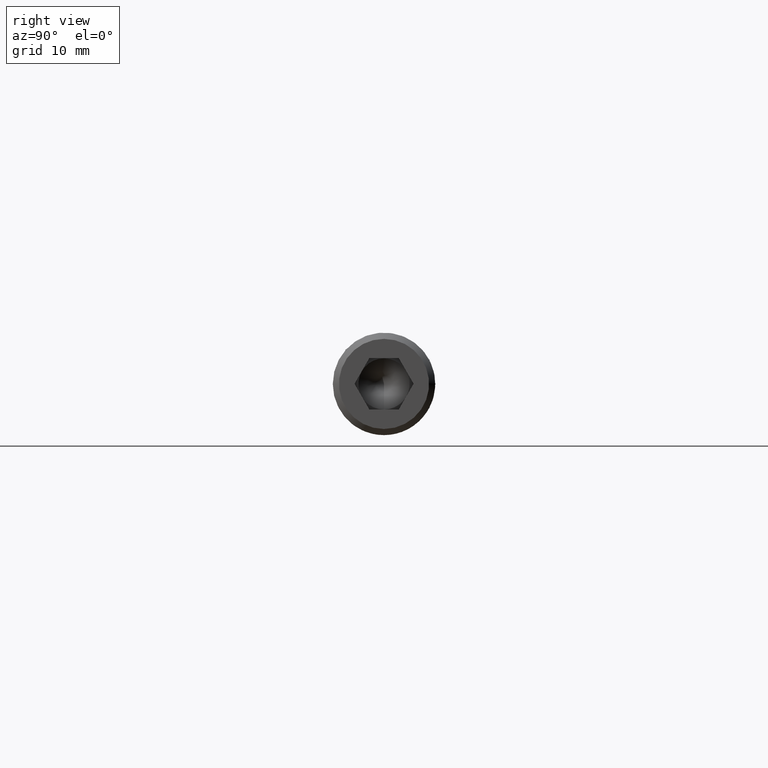
[diagram: clean part render]
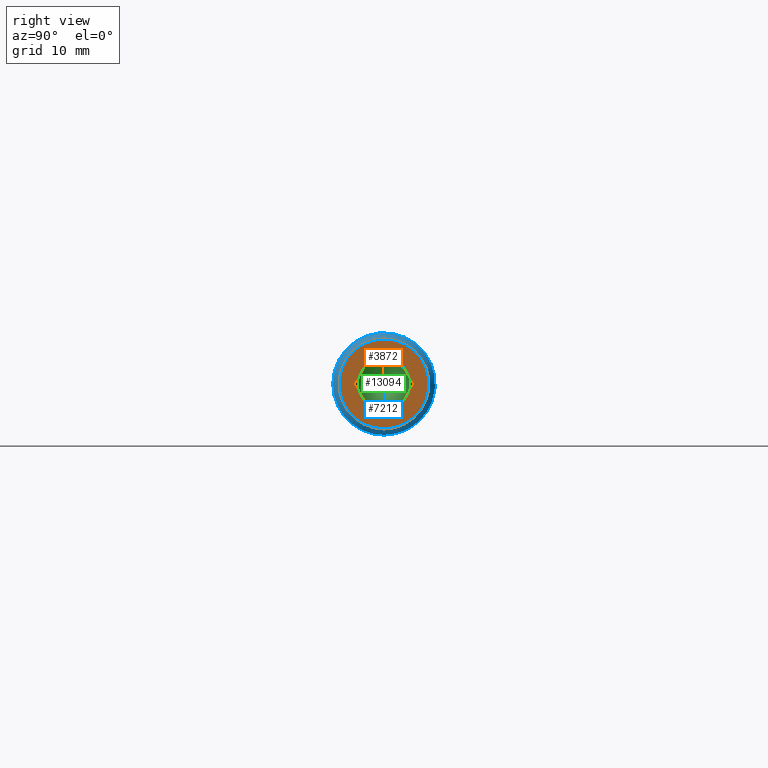
[diagram: same view with three faces highlighted in distinct colors, each labeled with its STEP entity id]
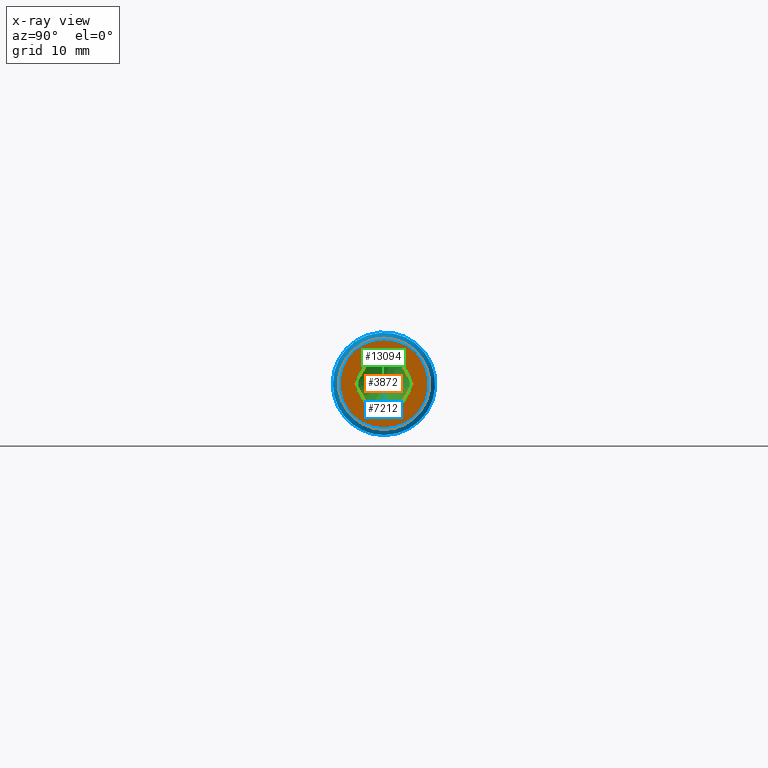
[diagram: x-ray of the same camera — body ghosted, the three highlighted faces saturated]
A machine part, right view with three faces highlighted in distinct colors.
The next image is the same camera in x-ray (body ghosted, the three faces saturated) — at least one of them is partly hidden behind the body in this view.
Their STEP definitions:

[orange] entity #3872 — the highlighted planar face has unit normal (1, 0, 0).
#395 = EDGE_LOOP ( 'NONE', ( #12107, #11286, #5623, #5883, #7409, #6543 ) ) ;
#838 = EDGE_CURVE ( 'NONE', #14747, #13923, #16644, .T. ) ;
#1577 = CARTESIAN_POINT ( 'NONE',  ( 70.00000000000000000, -2.886751345948133500, -4.766870681724039000E-018 ) ) ;
#1619 = EDGE_CURVE ( 'NONE', #10356, #9795, #4208, .T. ) ;
#1963 = ORIENTED_EDGE ( 'NONE', *, *, #10700, .T. ) ;
#2658 = CARTESIAN_POINT ( 'NONE',  ( 70.00000000000000000, -2.886751345948133500, -2.168404344971008900E-016 ) ) ;
#2667 = EDGE_LOOP ( 'NONE', ( #1963 ) ) ;
#3147 = LINE ( 'NONE', #5630, #14275 ) ;
#3193 = PLANE ( 'NONE',  #16053 ) ;
#3872 = ADVANCED_FACE ( 'NONE', ( #5187, #14295 ), #3193, .T. ) ;
#4208 = LINE ( 'NONE', #4544, #14334 ) ;
#4544 = CARTESIAN_POINT ( 'NONE',  ( 70.00000000000000000, -1.443375672974068500, 2.500000000000000400 ) ) ;
#4558 = LINE ( 'NONE', #8819, #16759 ) ;
#4677 = CARTESIAN_POINT ( 'NONE',  ( 70.00000000000000000, 0.0000000000000000000, 0.0000000000000000000 ) ) ;
#4721 = CARTESIAN_POINT ( 'NONE',  ( 70.00000000000000000, -1.443375672974070800, -2.499999999999999100 ) ) ;
#5187 = FACE_BOUND ( 'NONE', #395, .T. ) ;
#5623 = ORIENTED_EDGE ( 'NONE', *, *, #15873, .F. ) ;
#5630 = CARTESIAN_POINT ( 'NONE',  ( 70.00000000000000000, 1.443375672974060800, 2.500000000000000400 ) ) ;
#5647 = VECTOR ( 'NONE', #11597, 1000.000000000000000 ) ;
#5837 = DIRECTION ( 'NONE',  ( 1.000000000000000000, 0.0000000000000000000, 0.0000000000000000000 ) ) ;
#5883 = ORIENTED_EDGE ( 'NONE', *, *, #838, .F. ) ;
#5902 = AXIS2_PLACEMENT_3D ( 'NONE', #16089, #10814, #12087 ) ;
#6267 = LINE ( 'NONE', #1577, #16836 ) ;
#6543 = ORIENTED_EDGE ( 'NONE', *, *, #11757, .F. ) ;
#6946 = DIRECTION ( 'NONE',  ( 0.0000000000000000000, 0.4999999999999997200, -0.8660254037844388200 ) ) ;
#7097 = DIRECTION ( 'NONE',  ( 0.0000000000000000000, -0.5000000000000001100, -0.8660254037844384900 ) ) ;
#7409 = ORIENTED_EDGE ( 'NONE', *, *, #13074, .F. ) ;
#7703 = LINE ( 'NONE', #8896, #5647 ) ;
#8518 = CARTESIAN_POINT ( 'NONE',  ( 70.00000000000000000, 2.886751345948125100, -6.345340530042170500E-016 ) ) ;
#8611 = DIRECTION ( 'NONE',  ( 0.0000000000000000000, 0.0000000000000000000, -1.000000000000000000 ) ) ;
#8819 = CARTESIAN_POINT ( 'NONE',  ( 70.00000000000000000, 2.886751345948125100, -6.345340530042170500E-016 ) ) ;
#8896 = CARTESIAN_POINT ( 'NONE',  ( 70.00000000000000000, -1.443375672974070800, -2.499999999999999100 ) ) ;
#9128 = CARTESIAN_POINT ( 'NONE',  ( 70.00000000000000000, 1.443375672974060800, 2.500000000000000400 ) ) ;
#9795 = VERTEX_POINT ( 'NONE', #2658 ) ;
#10356 = VERTEX_POINT ( 'NONE', #15063 ) ;
#10700 = EDGE_CURVE ( 'NONE', #17143, #17143, #14809, .T. ) ;
#10814 = DIRECTION ( 'NONE',  ( 1.000000000000000000, 0.0000000000000000000, 0.0000000000000000000 ) ) ;
#11286 = ORIENTED_EDGE ( 'NONE', *, *, #15314, .F. ) ;
#11597 = DIRECTION ( 'NONE',  ( 0.0000000000000000000, 1.000000000000000000, -1.502314598737157300E-016 ) ) ;
#11757 = EDGE_CURVE ( 'NONE', #9795, #13629, #6267, .T. ) ;
#11954 = CARTESIAN_POINT ( 'NONE',  ( 70.00000000000000000, 1.443375672974062100, -2.499999999999999600 ) ) ;
#12087 = DIRECTION ( 'NONE',  ( 0.0000000000000000000, 0.0000000000000000000, -1.000000000000000000 ) ) ;
#12107 = ORIENTED_EDGE ( 'NONE', *, *, #1619, .F. ) ;
#13033 = CARTESIAN_POINT ( 'NONE',  ( 70.00000000000000000, 1.443375672974062100, -2.499999999999999600 ) ) ;
#13074 = EDGE_CURVE ( 'NONE', #13629, #14747, #7703, .T. ) ;
#13109 = VECTOR ( 'NONE', #13394, 1000.000000000000000 ) ;
#13159 = VERTEX_POINT ( 'NONE', #9128 ) ;
#13394 = DIRECTION ( 'NONE',  ( 0.0000000000000000000, 0.4999999999999997200, 0.8660254037844388200 ) ) ;
#13629 = VERTEX_POINT ( 'NONE', #4721 ) ;
#13923 = VERTEX_POINT ( 'NONE', #8518 ) ;
#14275 = VECTOR ( 'NONE', #14868, 1000.000000000000000 ) ;
#14295 = FACE_OUTER_BOUND ( 'NONE', #2667, .T. ) ;
#14334 = VECTOR ( 'NONE', #7097, 1000.000000000000200 ) ;
#14747 = VERTEX_POINT ( 'NONE', #13033 ) ;
#14809 = CIRCLE ( 'NONE', #5902, 4.399999999999996800 ) ;
#14868 = DIRECTION ( 'NONE',  ( 0.0000000000000000000, -1.000000000000000000, 0.0000000000000000000 ) ) ;
#15063 = CARTESIAN_POINT ( 'NONE',  ( 70.00000000000000000, -1.443375672974068500, 2.500000000000000400 ) ) ;
#15314 = EDGE_CURVE ( 'NONE', #13159, #10356, #3147, .T. ) ;
#15873 = EDGE_CURVE ( 'NONE', #13923, #13159, #4558, .T. ) ;
#15987 = CARTESIAN_POINT ( 'NONE',  ( 70.00000000000000000, 0.0000000000000000000, -4.399999999999996800 ) ) ;
#16053 = AXIS2_PLACEMENT_3D ( 'NONE', #4677, #5837, #8611 ) ;
#16089 = CARTESIAN_POINT ( 'NONE',  ( 70.00000000000000000, 0.0000000000000000000, 0.0000000000000000000 ) ) ;
#16644 = LINE ( 'NONE', #11954, #13109 ) ;
#16759 = VECTOR ( 'NONE', #16903, 1000.000000000000100 ) ;
#16836 = VECTOR ( 'NONE', #6946, 1000.000000000000000 ) ;
#16903 = DIRECTION ( 'NONE',  ( 0.0000000000000000000, -0.4999999999999997800, 0.8660254037844387100 ) ) ;
#17143 = VERTEX_POINT ( 'NONE', #15987 ) ;

[blue] entity #7212 — the highlighted conical surface has half-angle 45 deg.
#496 = EDGE_LOOP ( 'NONE', ( #12341 ) ) ;
#1043 = FACE_OUTER_BOUND ( 'NONE', #496, .T. ) ;
#3706 = VERTEX_POINT ( 'NONE', #8065 ) ;
#4223 = AXIS2_PLACEMENT_3D ( 'NONE', #15595, #14371, #6438 ) ;
#5902 = AXIS2_PLACEMENT_3D ( 'NONE', #16089, #10814, #12087 ) ;
#5999 = DIRECTION ( 'NONE',  ( -1.000000000000000000, 0.0000000000000000000, 0.0000000000000000000 ) ) ;
#6438 = DIRECTION ( 'NONE',  ( 0.0000000000000000000, 0.0000000000000000000, -1.000000000000000000 ) ) ;
#7212 = ADVANCED_FACE ( 'NONE', ( #1043, #14373 ), #9131, .T. ) ;
#7348 = DIRECTION ( 'NONE',  ( 0.0000000000000000000, 0.0000000000000000000, 1.000000000000000000 ) ) ;
#8065 = CARTESIAN_POINT ( 'NONE',  ( 69.40000000000000600, 0.0000000000000000000, -5.000000000000000000 ) ) ;
#9131 = CONICAL_SURFACE ( 'NONE', #9743, 4.399999999999996800, 0.7853981633974482800 ) ;
#9473 = EDGE_LOOP ( 'NONE', ( #14982 ) ) ;
#9743 = AXIS2_PLACEMENT_3D ( 'NONE', #12587, #5999, #7348 ) ;
#10120 = EDGE_CURVE ( 'NONE', #3706, #3706, #14934, .T. ) ;
#10700 = EDGE_CURVE ( 'NONE', #17143, #17143, #14809, .T. ) ;
#10814 = DIRECTION ( 'NONE',  ( 1.000000000000000000, 0.0000000000000000000, 0.0000000000000000000 ) ) ;
#12087 = DIRECTION ( 'NONE',  ( 0.0000000000000000000, 0.0000000000000000000, -1.000000000000000000 ) ) ;
#12341 = ORIENTED_EDGE ( 'NONE', *, *, #10120, .F. ) ;
#12587 = CARTESIAN_POINT ( 'NONE',  ( 70.00000000000000000, 0.0000000000000000000, 0.0000000000000000000 ) ) ;
#14371 = DIRECTION ( 'NONE',  ( -1.000000000000000000, 0.0000000000000000000, 0.0000000000000000000 ) ) ;
#14373 = FACE_BOUND ( 'NONE', #9473, .T. ) ;
#14809 = CIRCLE ( 'NONE', #5902, 4.399999999999996800 ) ;
#14934 = CIRCLE ( 'NONE', #4223, 5.000000000000000000 ) ;
#14982 = ORIENTED_EDGE ( 'NONE', *, *, #10700, .F. ) ;
#15595 = CARTESIAN_POINT ( 'NONE',  ( 69.40000000000000600, 0.0000000000000000000, 0.0000000000000000000 ) ) ;
#15987 = CARTESIAN_POINT ( 'NONE',  ( 70.00000000000000000, 0.0000000000000000000, -4.399999999999996800 ) ) ;
#16089 = CARTESIAN_POINT ( 'NONE',  ( 70.00000000000000000, 0.0000000000000000000, 0.0000000000000000000 ) ) ;
#17143 = VERTEX_POINT ( 'NONE', #15987 ) ;

[green] entity #13094 — the highlighted conical surface has half-angle 59 deg.
#19 = CIRCLE ( 'NONE', #12941, 2.499999999999997300 ) ;
#375 = DIRECTION ( 'NONE',  ( 0.0000000000000000000, 0.0000000000000000000, -1.000000000000000000 ) ) ;
#441 = CARTESIAN_POINT ( 'NONE',  ( 64.00000000000000000, -2.165063509461099500, -1.250000000000004900 ) ) ;
#598 = VERTEX_POINT ( 'NONE', #10590 ) ;
#623 = DIRECTION ( 'NONE',  ( 1.000000000000000000, 0.0000000000000000000, 0.0000000000000000000 ) ) ;
#788 = DIRECTION ( 'NONE',  ( 0.0000000000000000000, 0.0000000000000000000, -1.000000000000000000 ) ) ;
#935 = ORIENTED_EDGE ( 'NONE', *, *, #16229, .T. ) ;
#1407 = CARTESIAN_POINT ( 'NONE',  ( 64.00000000000000000, -2.165063509461095000, 1.249999999999995800 ) ) ;
#1661 = EDGE_CURVE ( 'NONE', #7528, #598, #7524, .T. ) ;
#1796 = EDGE_LOOP ( 'NONE', ( #3772, #17009, #935, #9366, #3487, #3219 ) ) ;
#1899 = CARTESIAN_POINT ( 'NONE',  ( 64.00000000000000000, -3.755786496842887700E-016, -2.500000000000000000 ) ) ;
#2258 = DIRECTION ( 'NONE',  ( 0.0000000000000000000, 0.0000000000000000000, -1.000000000000000000 ) ) ;
#3219 = ORIENTED_EDGE ( 'NONE', *, *, #8610, .T. ) ;
#3487 = ORIENTED_EDGE ( 'NONE', *, *, #7591, .T. ) ;
#3606 = DIRECTION ( 'NONE',  ( 0.0000000000000000000, 0.0000000000000000000, -1.000000000000000000 ) ) ;
#3655 = CARTESIAN_POINT ( 'NONE',  ( 64.00000000000000000, 0.0000000000000000000, -3.815231260201602100E-015 ) ) ;
#3772 = ORIENTED_EDGE ( 'NONE', *, *, #1661, .T. ) ;
#4853 = AXIS2_PLACEMENT_3D ( 'NONE', #12616, #16630, #8873 ) ;
#5117 = AXIS2_PLACEMENT_3D ( 'NONE', #3655, #15627, #3606 ) ;
#5322 = AXIS2_PLACEMENT_3D ( 'NONE', #9289, #13327, #5398 ) ;
#5398 = DIRECTION ( 'NONE',  ( 0.0000000000000000000, 0.0000000000000000000, -1.000000000000000000 ) ) ;
#7080 = CIRCLE ( 'NONE', #14951, 2.499999999999997300 ) ;
#7524 = CIRCLE ( 'NONE', #4853, 2.499999999999997300 ) ;
#7528 = VERTEX_POINT ( 'NONE', #1899 ) ;
#7591 = EDGE_CURVE ( 'NONE', #12992, #15331, #19, .T. ) ;
#8270 = CARTESIAN_POINT ( 'NONE',  ( 64.00000000000000000, 0.0000000000000000000, -3.815231260201602100E-015 ) ) ;
#8278 = CIRCLE ( 'NONE', #5117, 2.499999999999997300 ) ;
#8610 = EDGE_CURVE ( 'NONE', #15331, #7528, #7080, .T. ) ;
#8873 = DIRECTION ( 'NONE',  ( 0.0000000000000000000, 0.0000000000000000000, -1.000000000000000000 ) ) ;
#9126 = CARTESIAN_POINT ( 'NONE',  ( 64.00000000000000000, 0.0000000000000000000, -3.815231260201602100E-015 ) ) ;
#9289 = CARTESIAN_POINT ( 'NONE',  ( 64.00000000000000000, 0.0000000000000000000, -3.815231260201602100E-015 ) ) ;
#9366 = ORIENTED_EDGE ( 'NONE', *, *, #12350, .T. ) ;
#10333 = CARTESIAN_POINT ( 'NONE',  ( 64.00000000000000000, 0.0000000000000000000, -2.694222958124176400E-015 ) ) ;
#10454 = DIRECTION ( 'NONE',  ( 1.000000000000000000, 0.0000000000000000000, 0.0000000000000000000 ) ) ;
#10590 = CARTESIAN_POINT ( 'NONE',  ( 64.00000000000000000, 2.165063509461094200, -1.250000000000001800 ) ) ;
#11303 = CARTESIAN_POINT ( 'NONE',  ( 64.00000000000000000, 0.0000000000000000000, -3.815231260201602100E-015 ) ) ;
#12350 = EDGE_CURVE ( 'NONE', #13191, #12992, #15985, .T. ) ;
#12504 = VERTEX_POINT ( 'NONE', #13954 ) ;
#12616 = CARTESIAN_POINT ( 'NONE',  ( 64.00000000000000000, 0.0000000000000000000, -2.694222958124176400E-015 ) ) ;
#12932 = DIRECTION ( 'NONE',  ( 1.000000000000000000, -0.0000000000000000000, -2.694278969285148000E-016 ) ) ;
#12941 = AXIS2_PLACEMENT_3D ( 'NONE', #11303, #623, #788 ) ;
#12992 = VERTEX_POINT ( 'NONE', #1407 ) ;
#13094 = ADVANCED_FACE ( 'NONE', ( #16181 ), #13901, .F. ) ;
#13191 = VERTEX_POINT ( 'NONE', #13282 ) ;
#13282 = CARTESIAN_POINT ( 'NONE',  ( 64.00000000000000000, 0.0000000000000000000, 2.499999999999994700 ) ) ;
#13327 = DIRECTION ( 'NONE',  ( 1.000000000000000000, 0.0000000000000000000, 0.0000000000000000000 ) ) ;
#13901 = CONICAL_SURFACE ( 'NONE', #14408, 2.499999999999997300, 1.029744258676648100 ) ;
#13954 = CARTESIAN_POINT ( 'NONE',  ( 64.00000000000000000, 2.165063509461095500, 1.249999999999994900 ) ) ;
#14408 = AXIS2_PLACEMENT_3D ( 'NONE', #10333, #12932, #2258 ) ;
#14483 = DIRECTION ( 'NONE',  ( 0.0000000000000000000, 0.0000000000000000000, -1.000000000000000000 ) ) ;
#14856 = DIRECTION ( 'NONE',  ( 1.000000000000000000, 0.0000000000000000000, 0.0000000000000000000 ) ) ;
#14951 = AXIS2_PLACEMENT_3D ( 'NONE', #9126, #10454, #14483 ) ;
#15331 = VERTEX_POINT ( 'NONE', #441 ) ;
#15422 = EDGE_CURVE ( 'NONE', #598, #12504, #8278, .T. ) ;
#15627 = DIRECTION ( 'NONE',  ( 1.000000000000000000, 0.0000000000000000000, 0.0000000000000000000 ) ) ;
#15985 = CIRCLE ( 'NONE', #5322, 2.499999999999997300 ) ;
#16181 = FACE_OUTER_BOUND ( 'NONE', #1796, .T. ) ;
#16229 = EDGE_CURVE ( 'NONE', #12504, #13191, #16550, .T. ) ;
#16550 = CIRCLE ( 'NONE', #16661, 2.499999999999997300 ) ;
#16630 = DIRECTION ( 'NONE',  ( 1.000000000000000000, -0.0000000000000000000, -2.694278969285148000E-016 ) ) ;
#16661 = AXIS2_PLACEMENT_3D ( 'NONE', #8270, #14856, #375 ) ;
#17009 = ORIENTED_EDGE ( 'NONE', *, *, #15422, .T. ) ;